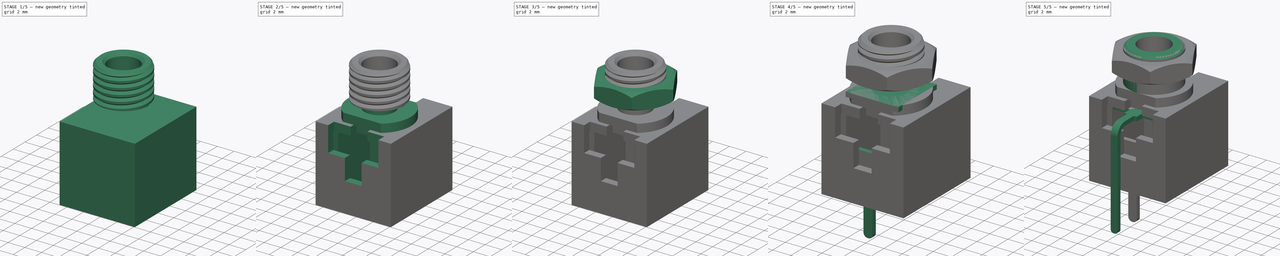
[diagram: build sequence overview — one tinted view per stage of 5, left to right]
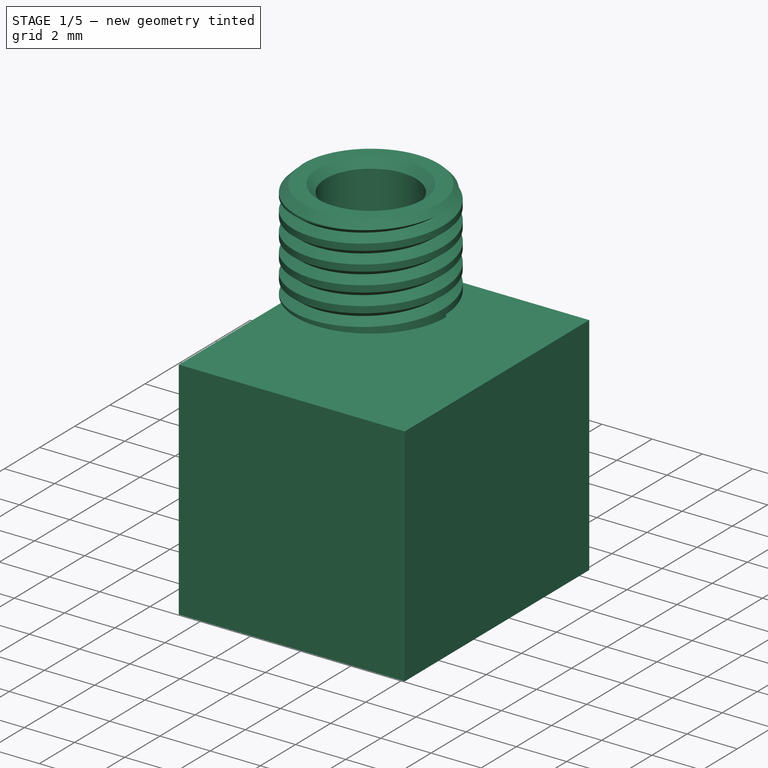
[diagram: stage 1 of 5 — iso view after this stage's code; geometry added in this stage tinted green]
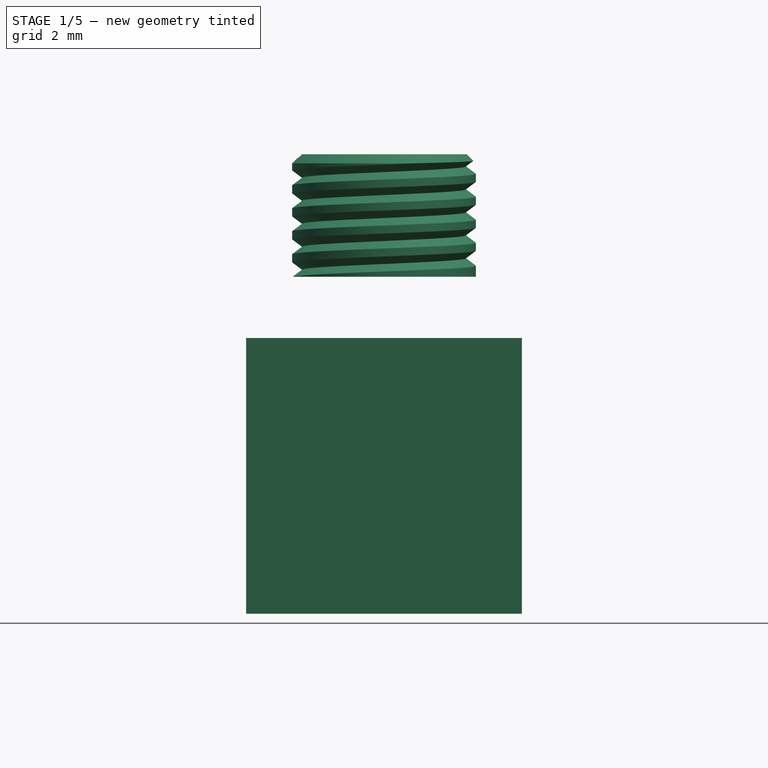
[diagram: stage 1 of 5 — front view after this stage's code; geometry added in this stage tinted green]
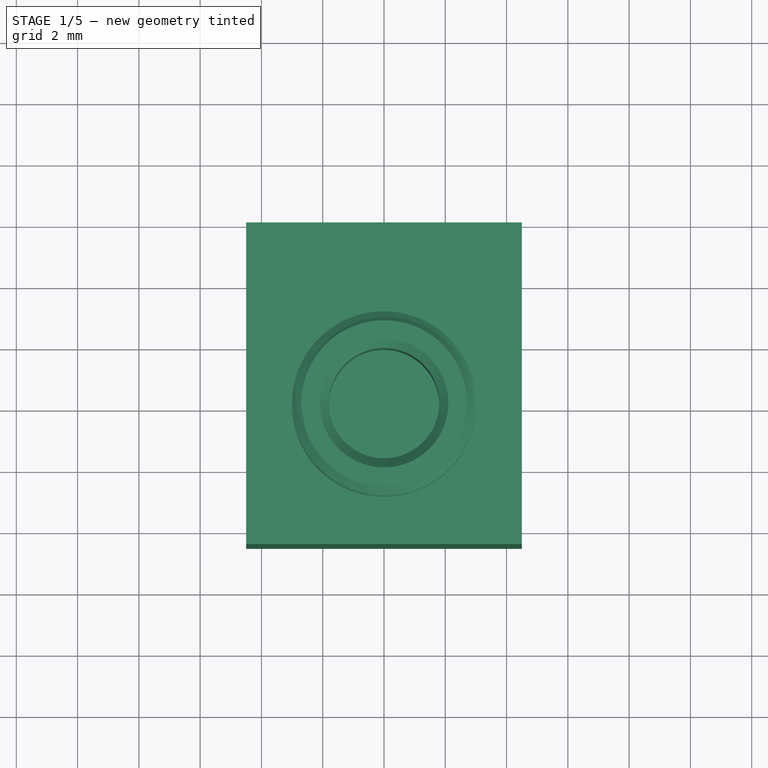
[diagram: stage 1 of 5 — top view after this stage's code; geometry added in this stage tinted green]
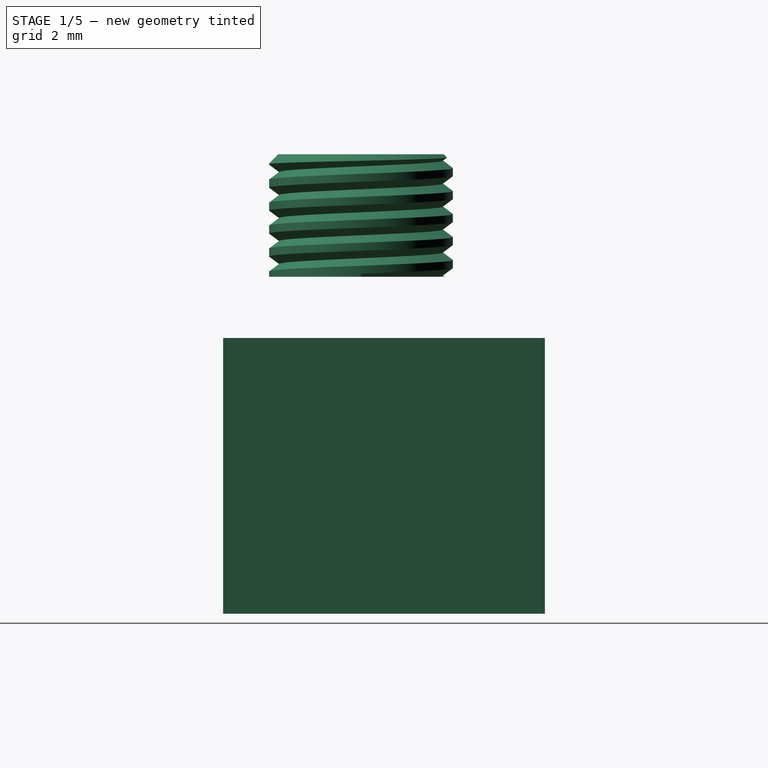
[diagram: stage 1 of 5 — right view after this stage's code; geometry added in this stage tinted green]
FCSTD DOCUMENT  (FreeCAD 0.20R29177 (Git))
Label: WQP-WQP518MA
License: All rights reserved
LicenseURL: http://en.wikipedia.org/wiki/All_rights_reserved
objects: Sketcher::SketchObject×19, PartDesign::Pad×9, PartDesign::Pocket×7, PartDesign::Body×5, PartDesign::Fillet×4, PartDesign::ShapeBinder×2, Part::Sphere×2, Part::MultiCommon×2, PartDesign::Chamfer×2, PartDesign::AdditivePipe×1, PartDesign::SubtractivePipe×1, Part::Compound×1, Part::Feature×1
note: 80 computed .brp shape members not serialized (recipe doc carries the construction recipe); baked Part::Feature solids carry a one-line shape summary decoded from their .brp

FEATURE [Sketcher::SketchObject] Sketch
  FullyConstrained = false
  MapMode = 5
  Support = -> [XY_Plane]
  sketch-geometry (4):
    g0: LineSegment StartX=-4.5 StartY=6 StartZ=0 EndX=4.5 EndY=6 EndZ=0
    g1: LineSegment StartX=4.5 StartY=6 StartZ=0 EndX=4.5 EndY=-4.5 EndZ=0
    g2: LineSegment StartX=4.5 StartY=-4.5 StartZ=0 EndX=-4.5 EndY=-4.5 EndZ=0
    g3: LineSegment StartX=-4.5 StartY=-4.5 StartZ=0 EndX=-4.5 EndY=6 EndZ=0
  constraints (11):
    c: Coincident(g0,g1)
    c: Coincident(g1,g2)
    c: Coincident(g2,g3)
    c: Coincident(g3,g0)
    c: Horizontal(g0)
    c: Vertical(g1)
    c: Vertical(g3)
    c: DistanceX(g0,g0) = 9
    c: DistanceY(g3,g3) = 10.5
    c: DistanceY(g2,g-1) = 4.5
    c: Symmetric(g2,g1,g-2)
FEATURE [PartDesign::Pad] Pad
  AllowMultiFace = false
  Direction = (1,1,1)
  Length = 9
  Length2 = 100
  Profile = -> Sketch
  Type = 0
FEATURE [Sketcher::SketchObject] Sketch016
  FullyConstrained = false
  MapMode = 5
  Placement = pos=(0,0,11) rot=(0,0,1;0rad)
  sketch-geometry (1):
    g0: Circle CenterX=0 CenterY=0 CenterZ=0 NormalX=0 NormalY=0 NormalZ=1 AngleXU=0 Radius=3
  constraints (2):
    c: Coincident(g-1,g0)
    c: Diameter(g0) = 6
FEATURE [Sketcher::SketchObject] Sketch019
  FullyConstrained = false
  MapMode = 5
  Placement = pos=(0,0,0) rot=(0.57735,0.57735,0.57735;2.0944rad)
  Support = -> [YZ_Plane002]
  sketch-geometry (3):
    g0: LineSegment StartX=-3.07288 StartY=16.2165 StartZ=0 EndX=-3.07288 EndY=15.6165 EndZ=0
    g1: LineSegment StartX=-3.07288 StartY=15.6165 StartZ=0 EndX=-2.67288 EndY=15.9165 EndZ=0
    g2: LineSegment StartX=-2.67288 StartY=15.9165 StartZ=0 EndX=-3.07288 EndY=16.2165 EndZ=0
  constraints (7):
    c: Coincident(g0,g1)
    c: Coincident(g1,g2)
    c: Coincident(g2,g0)
    c: Vertical(g0)
    c: DistanceY(g0,g0) = 0.6
    c: DistanceY(g0,g1) = 0.3
    c: DistanceX(g0,g1) = 0.4
FEATURE [PartDesign::Pad] Pad007
  AllowMultiFace = false
  Direction = (1,1,1)
  Length = 4
  Length2 = 100
  Placement = pos=(0,0,11) rot=(0,0,1;0rad)
  Profile = -> Sketch016
  Type = 0
FEATURE [Sketcher::SketchObject] Sketch023
  FullyConstrained = false
  MapMode = 5
  Placement = pos=(0,0,15) rot=(0,0,1;0rad)
  Support = -> [Pad007]
  sketch-geometry (1):
    g0: Circle CenterX=0 CenterY=0 CenterZ=0 NormalX=0 NormalY=0 NormalZ=1 AngleXU=0 Radius=1.8
  constraints (2):
    c: Coincident(g0,g-1)
    c: Diameter(g0) = 3.6
FEATURE [PartDesign::Pocket] Pocket007
  AllowMultiFace = false
  BaseFeature = -> Pad007
  Direction = (1,1,1)
  Length = 6
  Length2 = 100
  Placement = pos=(0,0,11) rot=(0,0,1;0rad)
  Profile = -> Sketch023
  Type = 0
FEATURE [PartDesign::Body] Body
  Group = -> [Sketch,Pad,Sketch001,Pocket,Sketch002,Pad001,Sketch004,Pocket002,Sketch007,Pocket011,Sketch032,Pocket012,Sketch033,Pocket013]
  Origin = -> Origin
  Tip = -> Pocket013
FEATURE [PartDesign::Chamfer] Chamfer001
  Angle = 45
  Base = -> Pocket007 [Edge3]
  BaseFeature = -> Pocket007
  ChamferType = 0
  FlipDirection = false
  Placement = pos=(0,0,11) rot=(0,0,1;0rad)
  Size = 0.3
  Size2 = 1
  SupportTransform = false
  UseAllEdges = false
FEATURE [PartDesign::SubtractivePipe] SubtractivePipe001
  AllowMultiFace = false
  AuxilleryCurvelinear = true
  AuxillerySpineTangent = false
  BaseFeature = -> Chamfer001
  Binormal = (0,0,0)
  Mode = 2
  Placement = pos=(0,0,11) rot=(0,0,1;0rad)
  Profile = -> Sketch019
  Spine = -> CopyHelix001 [Edge8,Edge7,Edge6,Edge5,Edge4,Edge3,Edge2,Edge1]
  SpineTangent = false
  Transformation = 0
  Transition = 0
FEATURE [PartDesign::Chamfer] Chamfer
  Angle = 45
  Base = -> SubtractivePipe001 [Edge21]
  BaseFeature = -> SubtractivePipe001
  ChamferType = 0
  FlipDirection = false
  Placement = pos=(0,0,11) rot=(0,0,1;0rad)
  Size = 0.3
  Size2 = 1
  SupportTransform = false
  UseAllEdges = false
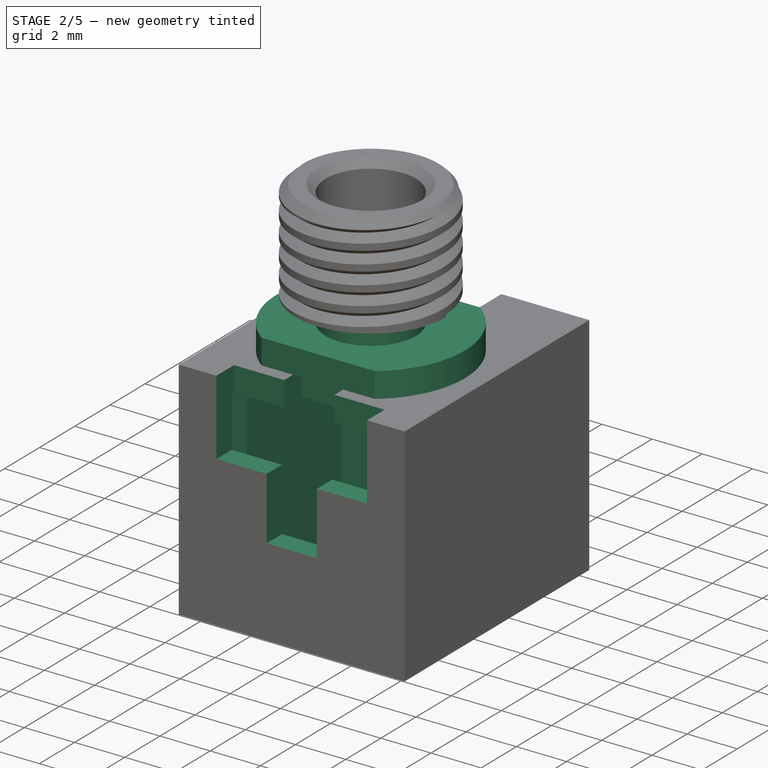
[diagram: stage 2 of 5 — iso view after this stage's code; geometry added in this stage tinted green]
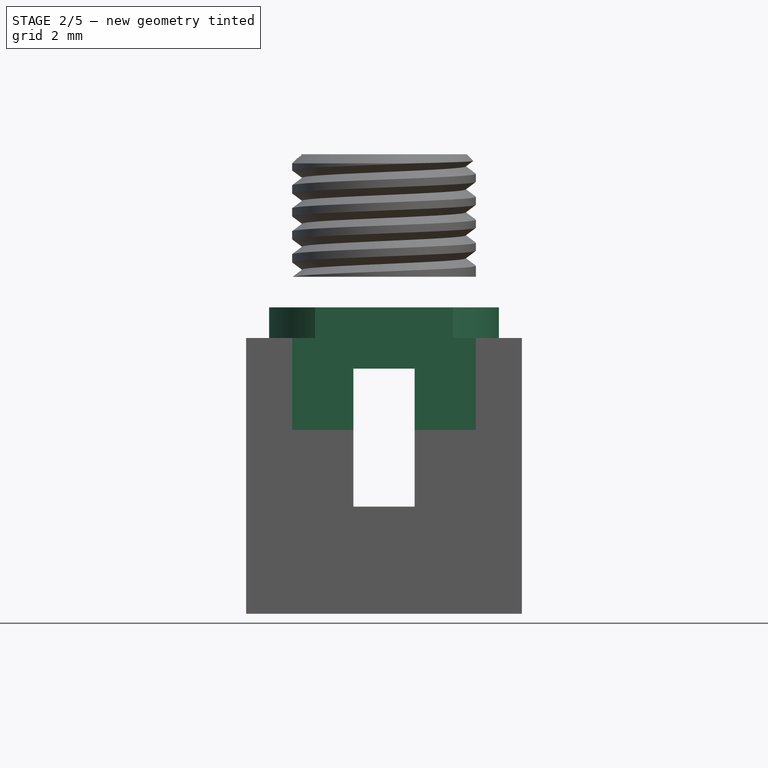
[diagram: stage 2 of 5 — front view after this stage's code; geometry added in this stage tinted green]
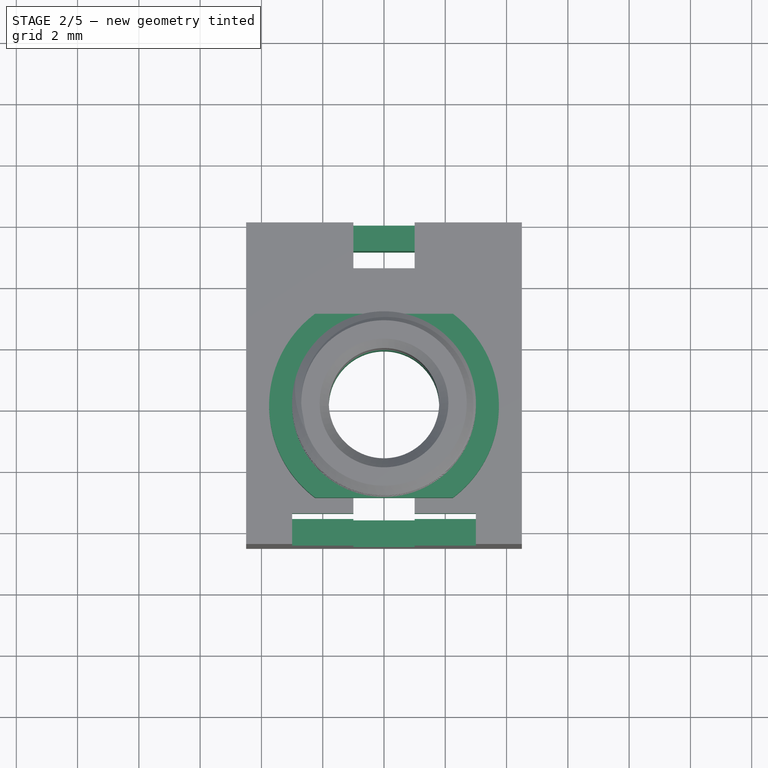
[diagram: stage 2 of 5 — top view after this stage's code; geometry added in this stage tinted green]
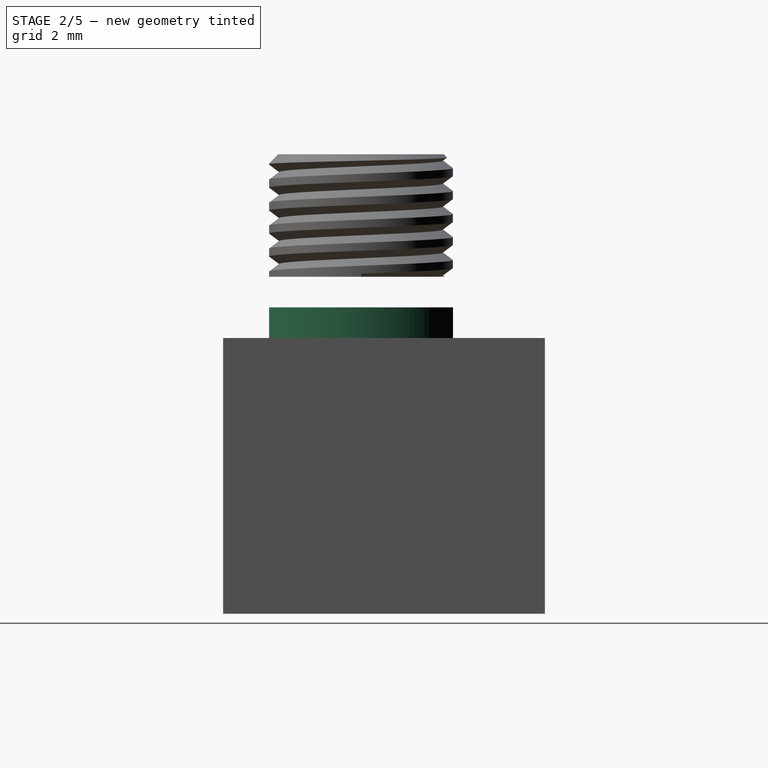
[diagram: stage 2 of 5 — right view after this stage's code; geometry added in this stage tinted green]
FEATURE [Sketcher::SketchObject] Sketch001
  ExternalGeometry = -> [Pad]
  FullyConstrained = false
  MapMode = 5
  Placement = pos=(0,0,0) rot=(1,0,0;3.14159rad)
  Support = -> [Pad]
  sketch-geometry (20):
    g0: LineSegment StartX=-3.75 StartY=3.63 StartZ=0 EndX=-3.75 EndY=3.13 EndZ=0
    g1: LineSegment StartX=-3.75 StartY=3.13 StartZ=0 EndX=-2.75 EndY=3.13 EndZ=0
    g2: LineSegment StartX=-2.75 StartY=3.13 StartZ=0 EndX=-2.75 EndY=1.13 EndZ=0
    g3: LineSegment StartX=-2.75 StartY=1.13 StartZ=0 EndX=-3.75 EndY=1.13 EndZ=0
    g4: LineSegment StartX=-3.75 StartY=1.13 StartZ=0 EndX=-3.75 EndY=-3.67 EndZ=0
    g5: LineSegment StartX=-3.75 StartY=-3.67 StartZ=0 EndX=-2.75 EndY=-3.67 EndZ=0
    g6: LineSegment StartX=-2.75 StartY=-3.67 StartZ=0 EndX=-2.75 EndY=-4.67 EndZ=0
    g7: LineSegment StartX=-2.75 StartY=-4.67 StartZ=0 EndX=-3.75 EndY=-4.67 EndZ=0
    g8: LineSegment StartX=-3.75 StartY=-4.67 StartZ=0 EndX=-3.75 EndY=-5.17 EndZ=0
    g9: LineSegment StartX=-3.75 StartY=-5.17 StartZ=0 EndX=3.75 EndY=-5.17 EndZ=0
    g10: LineSegment StartX=3.75 StartY=-5.17 StartZ=0 EndX=3.75 EndY=-4.67 EndZ=0
    g11: LineSegment StartX=3.75 StartY=-4.67 StartZ=0 EndX=2.75 EndY=-4.67 EndZ=0
    g12: LineSegment StartX=2.75 StartY=-4.67 StartZ=0 EndX=2.75 EndY=-3.67 EndZ=0
    g13: LineSegment StartX=2.75 StartY=-3.67 StartZ=0 EndX=3.75 EndY=-3.67 EndZ=0
    g14: LineSegment StartX=3.75 StartY=-3.67 StartZ=0 EndX=3.75 EndY=1.13 EndZ=0
    g15: LineSegment StartX=3.75 StartY=1.13 StartZ=0 EndX=2.75 EndY=1.13 EndZ=0
    g16: LineSegment StartX=2.75 StartY=1.13 StartZ=0 EndX=2.75 EndY=3.13 EndZ=0
    g17: LineSegment StartX=2.75 StartY=3.13 StartZ=0 EndX=3.75 EndY=3.13 EndZ=0
    g18: LineSegment StartX=3.75 StartY=3.13 StartZ=0 EndX=3.75 EndY=3.63 EndZ=0
    g19: LineSegment StartX=3.75 StartY=3.63 StartZ=0 EndX=-3.75 EndY=3.63 EndZ=0
  constraints (62):
    c: Coincident(g0,g1)
    c: Coincident(g1,g2)
    c: Coincident(g2,g3)
    c: Coincident(g3,g4)
    c: Coincident(g4,g5)
    c: Coincident(g5,g6)
    c: Coincident(g6,g7)
    c: Coincident(g7,g8)
    c: Coincident(g8,g9)
    c: Coincident(g9,g10)
    c: Coincident(g10,g11)
    c: Coincident(g11,g12)
    c: Coincident(g12,g13)
    c: Coincident(g13,g14)
    c: Coincident(g14,g15)
    c: Coincident(g15,g16)
    c: Coincident(g16,g17)
    c: Coincident(g17,g18)
    c: Coincident(g18,g19)
    c: Coincident(g19,g0)
    c: Vertical(g18)
    c: Vertical(g0)
    c: Vertical(g2)
    c: Vertical(g16)
    c: Vertical(g4)
    c: Vertical(g14)
    c: Vertical(g6)
    c: Vertical(g12)
    c: Vertical(g8)
    c: Vertical(g10)
    c: Horizontal(g11)
    c: Horizontal(g7)
    c: Horizontal(g5)
    c: Horizontal(g13)
    c: Horizontal(g15)
    c: Horizontal(g1)
    c: Horizontal(g17)
    c: Equal(g1,g17)
    c: Equal(g15,g3)
    c: Horizontal(g3)
    c: Equal(g5,g13)
    c: Equal(g13,g15)
    c: Equal(g3,g5)
    c: Equal(g7,g11)
    c: Equal(g9,g19)
    c: DistanceX(g13,g13) = 1
    c: Equal(g13,g11)
    c: Equal(g5,g13)
    c: Equal(g7,g13)
    c: DistanceY(g8,g8) = 0.5
    c: DistanceY(g18,g18) = 0.5
    c: DistanceY(g12,g12) = 1
    c: Equal(g6,g12)
    c: Equal(g2,g16)
    c: DistanceY(g-4,g9) = 0.83
    c: DistanceY(g18,g-3) = 0.87
    c: Equal(g10,g8)
    c: Equal(g4,g14)
    c: Equal(g0,g18)
    c: Symmetric(g8,g9,g-2)
    c: DistanceY(g16,g16) = 2
    c: DistanceX(g19,g19) = 7.5
FEATURE [PartDesign::Pocket] Pocket
  AllowMultiFace = false
  BaseFeature = -> Pad
  Direction = (1,1,1)
  Length = 8
  Length2 = 100
  Profile = -> Sketch001
  Type = 0
FEATURE [Sketcher::SketchObject] Sketch002
  ExternalGeometry = -> [Pocket]
  FullyConstrained = false
  MapMode = 5
  Placement = pos=(0,0,9) rot=(0,0,1;0rad)
  Support = -> [Pocket]
  sketch-geometry (4):
    g0: LineSegment StartX=-2.25 StartY=3 StartZ=0 EndX=2.25 EndY=3 EndZ=0
    g1: LineSegment StartX=2.25 StartY=-3 StartZ=0 EndX=-2.25 EndY=-3 EndZ=0
    g2: ArcOfCircle CenterX=0 CenterY=0 CenterZ=0 NormalX=0 NormalY=0 NormalZ=1 AngleXU=0 Radius=3.75 StartAngle=2.2143 EndAngle=4.06889
    g3: ArcOfCircle CenterX=0 CenterY=0 CenterZ=0 NormalX=0 NormalY=0 NormalZ=1 AngleXU=0 Radius=3.75 StartAngle=5.35589 EndAngle=7.21048
  constraints (11):
    c: Coincident(g2,g3)
    c: Coincident(g2,g-1)
    c: Coincident(g2,g0)
    c: Coincident(g0,g3)
    c: Coincident(g3,g1)
    c: Coincident(g1,g2)
    c: Horizontal(g0)
    c: Equal(g1,g0)
    c: Symmetric(g1,g1,g-2)
    c: DistanceY(g1,g0) = 6
    c: DistanceX(g0,g0) = 4.5
FEATURE [PartDesign::Pad] Pad001
  AllowMultiFace = false
  BaseFeature = -> Pocket
  Direction = (1,1,1)
  Length = 1
  Length2 = 100
  Profile = -> Sketch002
  Type = 0
FEATURE [Sketcher::SketchObject] Sketch004
  FullyConstrained = false
  MapMode = 5
  Placement = pos=(0,6,0) rot=(0,0.707107,0.707107;3.14159rad)
  sketch-geometry (4):
    g0: LineSegment StartX=-1 StartY=9 StartZ=0 EndX=1 EndY=9 EndZ=0
    g1: LineSegment StartX=1 StartY=9 StartZ=0 EndX=1 EndY=3 EndZ=0
    g2: LineSegment StartX=1 StartY=3 StartZ=0 EndX=-1 EndY=3 EndZ=0
    g3: LineSegment StartX=-1 StartY=3 StartZ=0 EndX=-1 EndY=9 EndZ=0
  constraints (10):
    c: Coincident(g0,g1)
    c: Coincident(g1,g2)
    c: Coincident(g2,g3)
    c: Coincident(g3,g0)
    c: Horizontal(g2)
    c: Vertical(g1)
    c: Vertical(g3)
    c: Symmetric(g0,g0,g-2)
    c: DistanceX(g2,g2) = 2
    c: DistanceY(g1,g1) = 6
FEATURE [PartDesign::Pocket] Pocket002
  AllowMultiFace = false
  BaseFeature = -> Pad001
  Direction = (1,1,1)
  Length = 1.5
  Length2 = 100
  Profile = -> Sketch004
  Type = 0
FEATURE [PartDesign::Pocket] Pocket011
  AllowMultiFace = false
  BaseFeature = -> Pocket002
  Direction = (1,1,1)
  Length = 5
  Length2 = 100
  Profile = -> Sketch007
  Reversed = true
  Type = 1
FEATURE [Sketcher::SketchObject] Sketch032
  ExternalGeometry = -> [Pocket011]
  FullyConstrained = false
  MapMode = 5
  Placement = pos=(0,-4.5,0) rot=(1,0,0;1.5708rad)
  Support = -> [Pocket011]
  sketch-geometry (8):
    g0: LineSegment StartX=-3 StartY=9 StartZ=0 EndX=-3 EndY=6 EndZ=0
    g1: LineSegment StartX=-3 StartY=6 StartZ=0 EndX=-1 EndY=6 EndZ=0
    g2: LineSegment StartX=-1 StartY=6 StartZ=0 EndX=-1 EndY=3.5 EndZ=0
    g3: LineSegment StartX=-1 StartY=3.5 StartZ=0 EndX=1 EndY=3.5 EndZ=0
    g4: LineSegment StartX=1 StartY=3.5 StartZ=0 EndX=1 EndY=6 EndZ=0
    g5: LineSegment StartX=1 StartY=6 StartZ=0 EndX=3 EndY=6 EndZ=0
    g6: LineSegment StartX=3 StartY=6 StartZ=0 EndX=3 EndY=9 EndZ=0
    g7: LineSegment StartX=3 StartY=9 StartZ=0 EndX=-3 EndY=9 EndZ=0
  constraints (22):
    c: Coincident(g0,g1)
    c: Coincident(g1,g2)
    c: Coincident(g2,g3)
    c: Coincident(g3,g4)
    c: Coincident(g4,g5)
    c: Coincident(g5,g6)
    c: Coincident(g6,g7)
    c: Coincident(g7,g0)
    c: Horizontal(g5)
    c: Vertical(g4)
    c: Vertical(g6)
    c: Vertical(g2)
    c: Vertical(g0)
    c: PointOnObject(g6,g-3)
    c: Symmetric(g0,g6,g-2)
    c: Symmetric(g2,g3,g-2)
    c: DistanceX(g7,g7) = 6
    c: DistanceX(g3,g3) = 2
    c: DistanceY(g6,g6) = 3
    c: Equal(g6,g0)
    c: Equal(g4,g2)
    c: DistanceY(g4,g4) = 2.5
FEATURE [PartDesign::Pocket] Pocket012
  AllowMultiFace = false
  BaseFeature = -> Pocket011
  Direction = (1,1,1)
  Length = 1
  Length2 = 100
  Profile = -> Sketch032
  Type = 0
FEATURE [Sketcher::SketchObject] Sketch033
  ExternalGeometry = -> [Pocket012]
  FullyConstrained = false
  MapMode = 5
  Placement = pos=(0,-3.5,5e-16) rot=(1,0,0;1.5708rad)
  Support = -> [Pocket012]
  sketch-geometry (4):
    g0: LineSegment StartX=-1 StartY=9 StartZ=0 EndX=1 EndY=9 EndZ=0
    g1: LineSegment StartX=1 StartY=9 StartZ=0 EndX=1 EndY=8 EndZ=0
    g2: LineSegment StartX=1 StartY=8 StartZ=0 EndX=-1 EndY=8 EndZ=0
    g3: LineSegment StartX=-1 StartY=8 StartZ=0 EndX=-1 EndY=9 EndZ=0
  constraints (11):
    c: Coincident(g0,g1)
    c: Coincident(g1,g2)
    c: Coincident(g2,g3)
    c: Coincident(g3,g0)
    c: Horizontal(g2)
    c: Vertical(g1)
    c: Vertical(g3)
    c: PointOnObject(g0,g-3)
    c: PointOnObject(g2,g-4)
    c: Symmetric(g0,g0,g-2)
    c: DistanceX(g0,g0) = 2
FEATURE [PartDesign::Pocket] Pocket013
  AllowMultiFace = false
  BaseFeature = -> Pocket012
  Direction = (1,1,1)
  Length = 1
  Length2 = 100
  Profile = -> Sketch033
  Type = 0
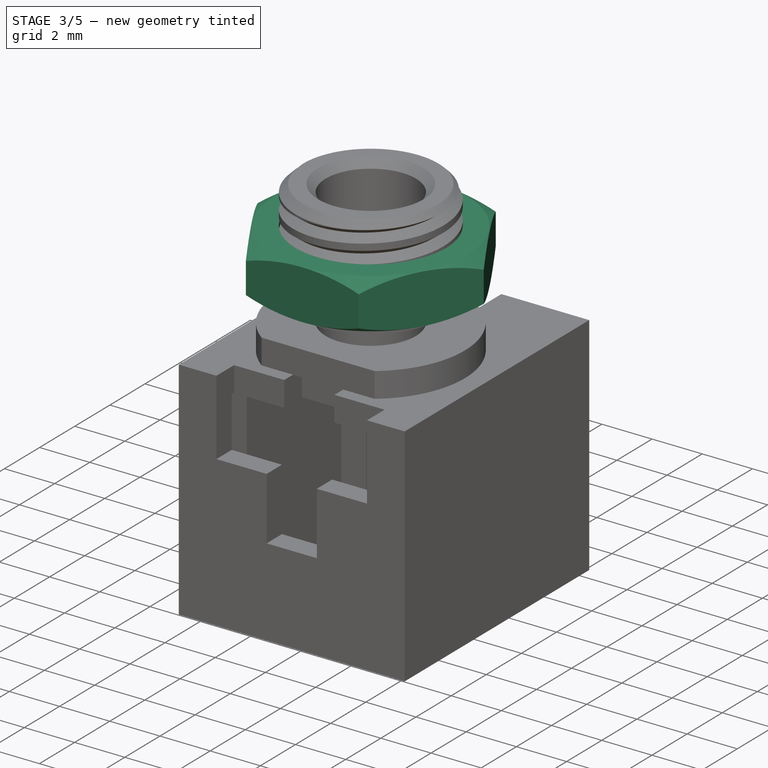
[diagram: stage 3 of 5 — iso view after this stage's code; geometry added in this stage tinted green]
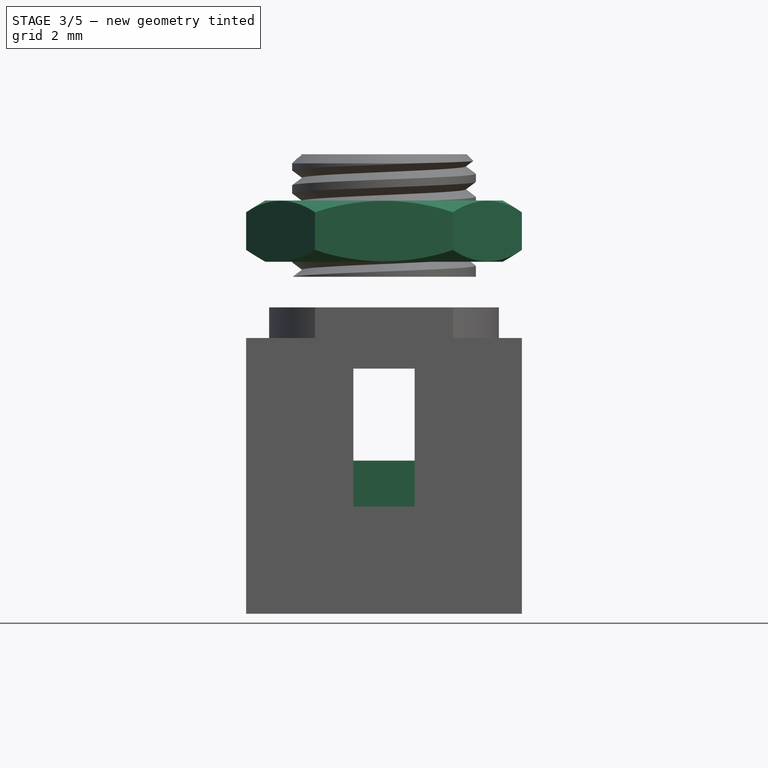
[diagram: stage 3 of 5 — front view after this stage's code; geometry added in this stage tinted green]
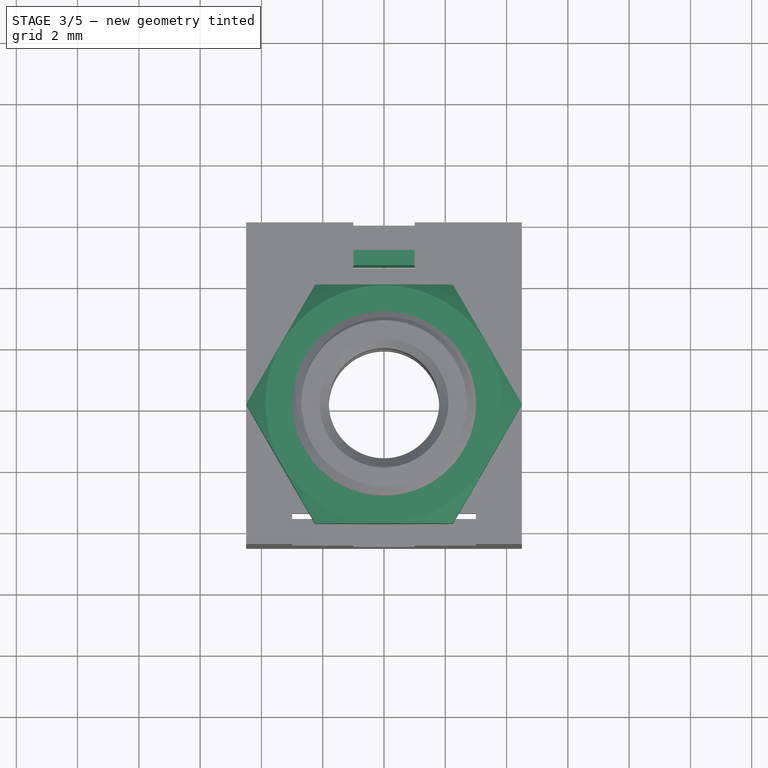
[diagram: stage 3 of 5 — top view after this stage's code; geometry added in this stage tinted green]
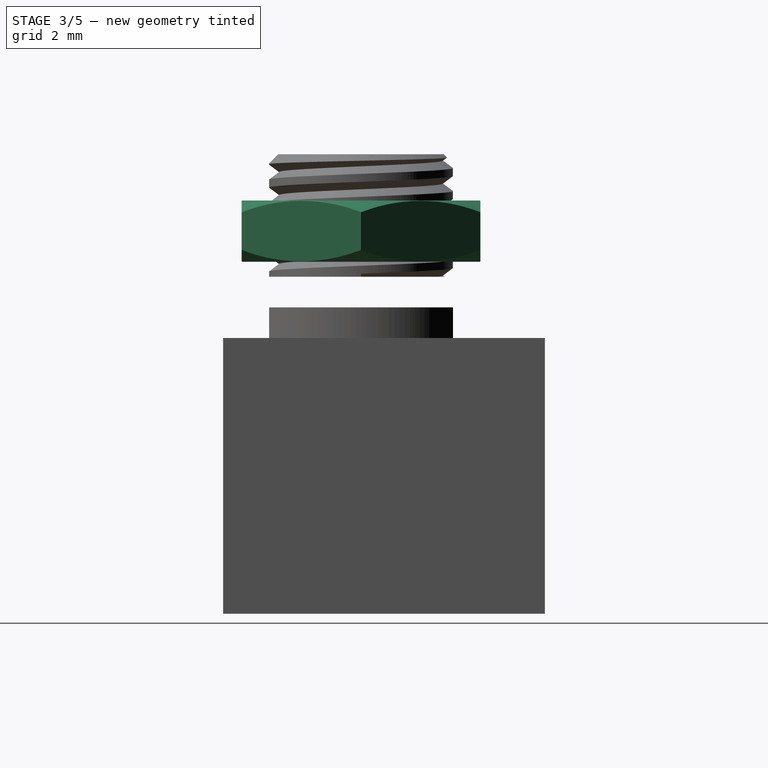
[diagram: stage 3 of 5 — right view after this stage's code; geometry added in this stage tinted green]
FEATURE [PartDesign::Body] Body003  label="R"
  Group = -> [Sketch025,Pad009,Sketch026,Pad010,Fillet005]
  Origin = -> Origin003
  Tip = -> Fillet005
FEATURE [Sketcher::SketchObject] Sketch027
  FullyConstrained = false
  MapMode = 5
  Support = -> [XY_Plane004]
  sketch-geometry (4):
    g0: LineSegment StartX=-3.75 StartY=4.67 StartZ=0 EndX=3.75 EndY=4.67 EndZ=0
    g1: LineSegment StartX=3.75 StartY=4.67 StartZ=0 EndX=3.75 EndY=5.17 EndZ=0
    g2: LineSegment StartX=3.75 StartY=5.17 StartZ=0 EndX=-3.75 EndY=5.17 EndZ=0
    g3: LineSegment StartX=-3.75 StartY=5.17 StartZ=0 EndX=-3.75 EndY=4.67 EndZ=0
  constraints (11):
    c: Coincident(g0,g1)
    c: Coincident(g1,g2)
    c: Coincident(g2,g3)
    c: Coincident(g3,g0)
    c: Horizontal(g0)
    c: Vertical(g1)
    c: Vertical(g3)
    c: Symmetric(g1,g2,g-2)
    c: DistanceY(g3,g3) = 0.5
    c: DistanceX(g0,g0) = 7.5
    c: DistanceY(g-1,g0) = 4.67
FEATURE [PartDesign::Pad] Pad011
  AllowMultiFace = false
  Direction = (1,1,1)
  Length = 5
  Length2 = 100
  Profile = -> Sketch027
  Type = 0
FEATURE [PartDesign::Body] Body004  label="T"
  Group = -> [Sketch027,Pad011,Sketch028,Pad012,Fillet006]
  Origin = -> Origin004
  Tip = -> Fillet006
FEATURE [Part::Sphere] Sphere
  Angle1 = -90
  Angle2 = 90
  Angle3 = 360
  AttacherType = Attacher::AttachEngine3D
  Placement = pos=(0,0,7) rot=(0,0,1;0rad)
  Radius = 8
FEATURE [Part::MultiCommon] Common
  Shapes = -> [Sphere]
FEATURE [Part::Sphere] Sphere001
  Angle1 = -90
  Angle2 = 90
  Angle3 = 360
  AttacherType = Attacher::AttachEngine3D
  Placement = pos=(0,0,-5) rot=(0,0,1;0rad)
  Radius = 8
FEATURE [Part::MultiCommon] Common001  label="Hex_nut"
  Placement = pos=(0,0,11.49) rot=(0,0,1;0rad)
  Shapes = -> [Sphere001,Common]
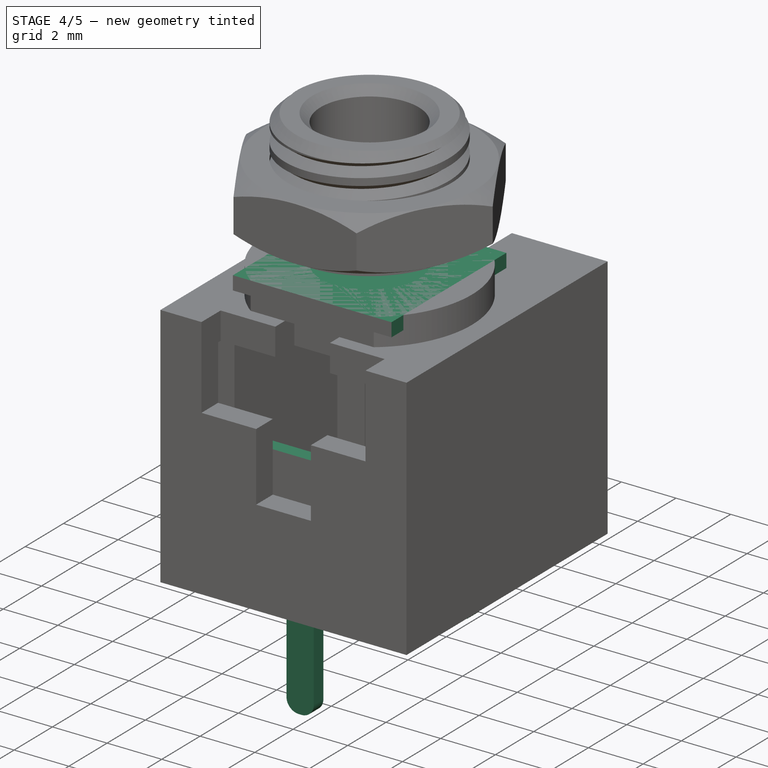
[diagram: stage 4 of 5 — iso view after this stage's code; geometry added in this stage tinted green]
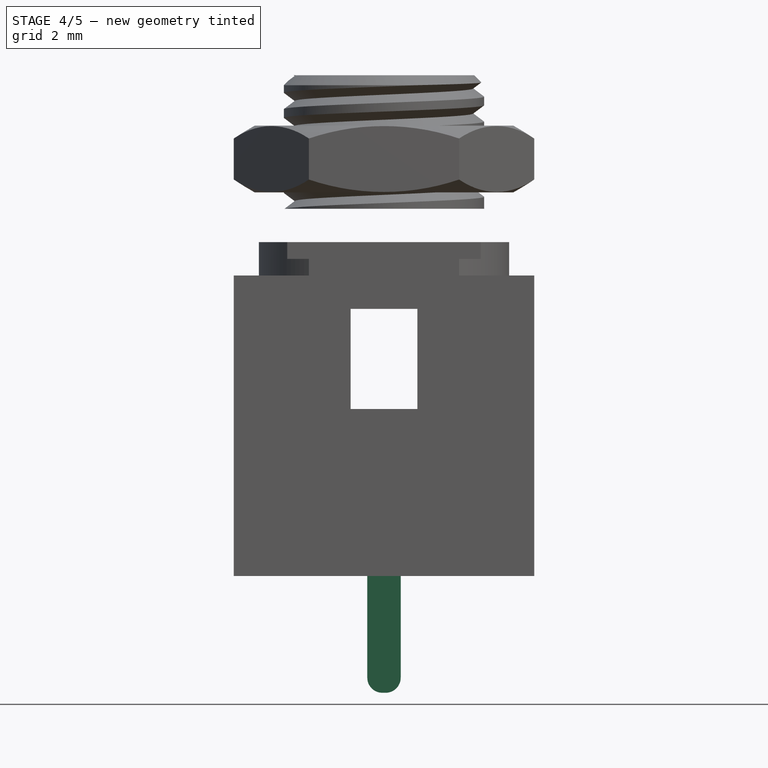
[diagram: stage 4 of 5 — front view after this stage's code; geometry added in this stage tinted green]
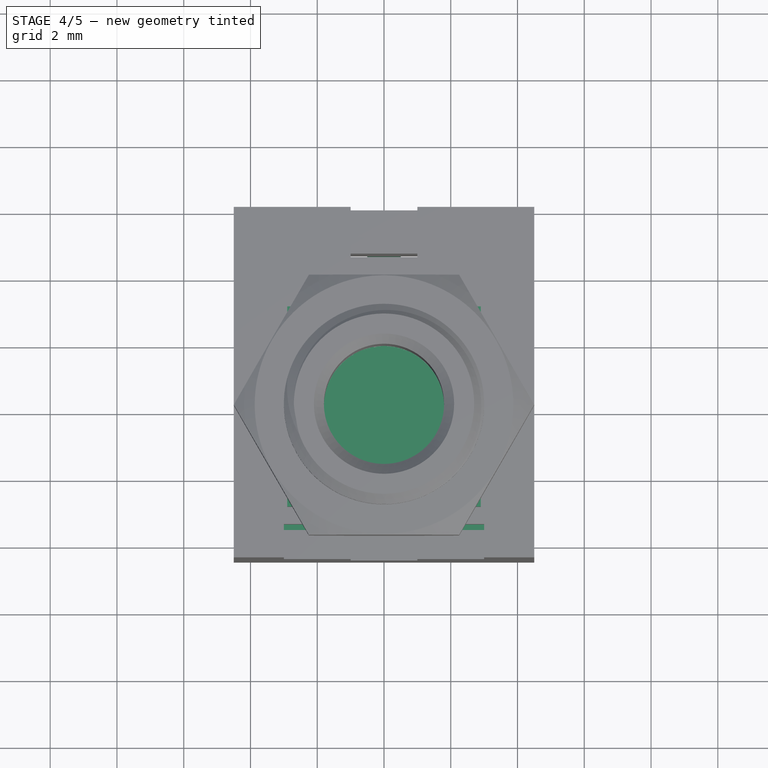
[diagram: stage 4 of 5 — top view after this stage's code; geometry added in this stage tinted green]
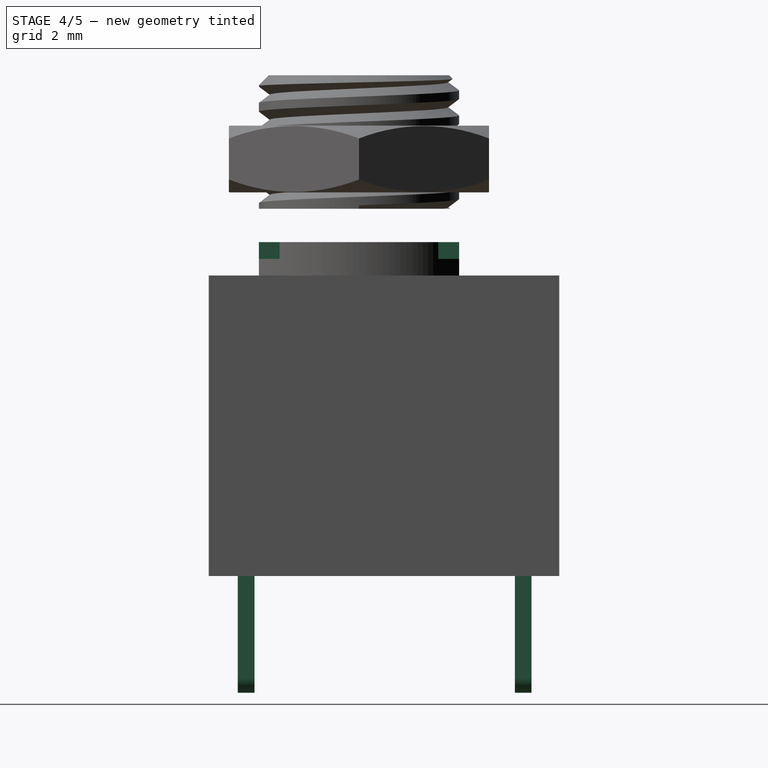
[diagram: stage 4 of 5 — right view after this stage's code; geometry added in this stage tinted green]
FEATURE [Sketcher::SketchObject] Sketch007
  FullyConstrained = false
  MapMode = 5
  Placement = pos=(0,2e-15,10) rot=(1,0,0;3.14159rad)
  sketch-geometry (1):
    g0: Circle CenterX=0 CenterY=0 CenterZ=0 NormalX=0 NormalY=0 NormalZ=1 AngleXU=0 Radius=1.8
  constraints (2):
    c: Coincident(g0,g-1)
    c: Diameter(g0) = 3.6
FEATURE [PartDesign::ShapeBinder] CopyPocket005
  TraceSupport = false
FEATURE [Sketcher::SketchObject] Sketch008
  FullyConstrained = false
  MapMode = 5
  Placement = pos=(0,0,9.5) rot=(0,0,1;0rad)
  Support = -> [CopyPocket005]
  sketch-geometry (4):
    g0: LineSegment StartX=-2.9 StartY=3 StartZ=0 EndX=2.9 EndY=3 EndZ=0
    g1: LineSegment StartX=2.9 StartY=3 StartZ=0 EndX=2.9 EndY=-3 EndZ=0
    g2: LineSegment StartX=2.9 StartY=-3 StartZ=0 EndX=-2.9 EndY=-3 EndZ=0
    g3: LineSegment StartX=-2.9 StartY=-3 StartZ=0 EndX=-2.9 EndY=3 EndZ=0
  constraints (10):
    c: Coincident(g0,g1)
    c: Coincident(g1,g2)
    c: Coincident(g2,g3)
    c: Coincident(g3,g0)
    c: Horizontal(g0)
    c: Vertical(g3)
    c: Symmetric(g2,g1,g-2)
    c: Symmetric(g0,g1,g-1)
    c: DistanceY(g1,g1) = 6
    c: DistanceX(g0,g0) = 5.8
FEATURE [PartDesign::Pad] Pad002
  AllowMultiFace = false
  Direction = (1,1,1)
  Length = 0.5
  Length2 = 100
  Profile = -> Sketch008
  Type = 0
FEATURE [PartDesign::Body] Body001  label="S"
  Group = -> [CopyPocket005,Sketch008,Pad002,Fillet001,Sketch009,Pad003,Sketch010,Sketch011,AdditivePipe,Fillet002,Sketch024,Pocket008]
  Origin = -> Origin001
  Placement = pos=(0,0,-2) rot=(0,0,1;0rad)
  Tip = -> Pocket008
FEATURE [Sketcher::SketchObject] Sketch025
  FullyConstrained = false
  MapMode = 5
  Support = -> [XY_Plane003]
  sketch-geometry (4):
    g0: LineSegment StartX=-3.75 StartY=-3.63 StartZ=0 EndX=3.75 EndY=-3.63 EndZ=0
    g1: LineSegment StartX=3.75 StartY=-3.63 StartZ=0 EndX=3.75 EndY=-3.13 EndZ=0
    g2: LineSegment StartX=3.75 StartY=-3.13 StartZ=0 EndX=-3.75 EndY=-3.13 EndZ=0
    g3: LineSegment StartX=-3.75 StartY=-3.13 StartZ=0 EndX=-3.75 EndY=-3.63 EndZ=0
  constraints (11):
    c: Coincident(g0,g1)
    c: Coincident(g1,g2)
    c: Coincident(g2,g3)
    c: Coincident(g3,g0)
    c: Horizontal(g0)
    c: Vertical(g1)
    c: Vertical(g3)
    c: Symmetric(g1,g2,g-2)
    c: DistanceY(g3,g3) = 0.5
    c: DistanceX(g0,g0) = 7.5
    c: DistanceY(g1,g-1) = 3.13
FEATURE [PartDesign::Pad] Pad009
  AllowMultiFace = false
  Direction = (1,1,1)
  Length = 5
  Length2 = 100
  Profile = -> Sketch025
  Type = 0
FEATURE [Sketcher::SketchObject] Sketch026
  ExternalGeometry = -> [Pad009]
  FullyConstrained = false
  MapMode = 5
  Placement = pos=(0,0,0) rot=(1,0,0;3.14159rad)
  Support = -> [Pad009]
  sketch-geometry (4):
    g0: LineSegment StartX=-0.5 StartY=3.63 StartZ=0 EndX=0.5 EndY=3.63 EndZ=0
    g1: LineSegment StartX=0.5 StartY=3.63 StartZ=0 EndX=0.5 EndY=3.13 EndZ=0
    g2: LineSegment StartX=0.5 StartY=3.13 StartZ=0 EndX=-0.5 EndY=3.13 EndZ=0
    g3: LineSegment StartX=-0.5 StartY=3.13 StartZ=0 EndX=-0.5 EndY=3.63 EndZ=0
  constraints (11):
    c: Coincident(g0,g1)
    c: Coincident(g1,g2)
    c: Coincident(g2,g3)
    c: Coincident(g3,g0)
    c: Horizontal(g2)
    c: Vertical(g1)
    c: Vertical(g3)
    c: PointOnObject(g0,g-3)
    c: PointOnObject(g1,g-4)
    c: Symmetric(g0,g0,g-2)
    c: DistanceX(g0,g0) = 1
FEATURE [PartDesign::Pad] Pad010
  AllowMultiFace = false
  BaseFeature = -> Pad009
  Direction = (1,1,1)
  Length = 3.5
  Length2 = 100
  Profile = -> Sketch026
  Type = 0
FEATURE [PartDesign::Fillet] Fillet005
  Base = -> Pad010 [Edge25,Edge23]
  BaseFeature = -> Pad010
  Radius = 0.45
  SupportTransform = false
  UseAllEdges = false
FEATURE [Sketcher::SketchObject] Sketch028
  ExternalGeometry = -> [Pad011]
  FullyConstrained = false
  MapMode = 5
  Placement = pos=(0,0,0) rot=(1,0,0;3.14159rad)
  Support = -> [Pad011]
  sketch-geometry (4):
    g0: LineSegment StartX=-0.5 StartY=-4.67 StartZ=0 EndX=0.5 EndY=-4.67 EndZ=0
    g1: LineSegment StartX=0.5 StartY=-4.67 StartZ=0 EndX=0.5 EndY=-5.17 EndZ=0
    g2: LineSegment StartX=0.5 StartY=-5.17 StartZ=0 EndX=-0.5 EndY=-5.17 EndZ=0
    g3: LineSegment StartX=-0.5 StartY=-5.17 StartZ=0 EndX=-0.5 EndY=-4.67 EndZ=0
  constraints (11):
    c: Coincident(g0,g1)
    c: Coincident(g1,g2)
    c: Coincident(g2,g3)
    c: Coincident(g3,g0)
    c: Horizontal(g2)
    c: Vertical(g1)
    c: Vertical(g3)
    c: PointOnObject(g0,g-3)
    c: PointOnObject(g1,g-4)
    c: Symmetric(g0,g0,g-2)
    c: DistanceX(g0,g0) = 1
FEATURE [PartDesign::Pad] Pad012
  AllowMultiFace = false
  BaseFeature = -> Pad011
  Direction = (1,1,1)
  Length = 3.5
  Length2 = 100
  Profile = -> Sketch028
  Type = 0
FEATURE [PartDesign::Fillet] Fillet006
  Base = -> Pad012 [Edge25,Edge23]
  BaseFeature = -> Pad012
  Radius = 0.45
  SupportTransform = false
  UseAllEdges = false
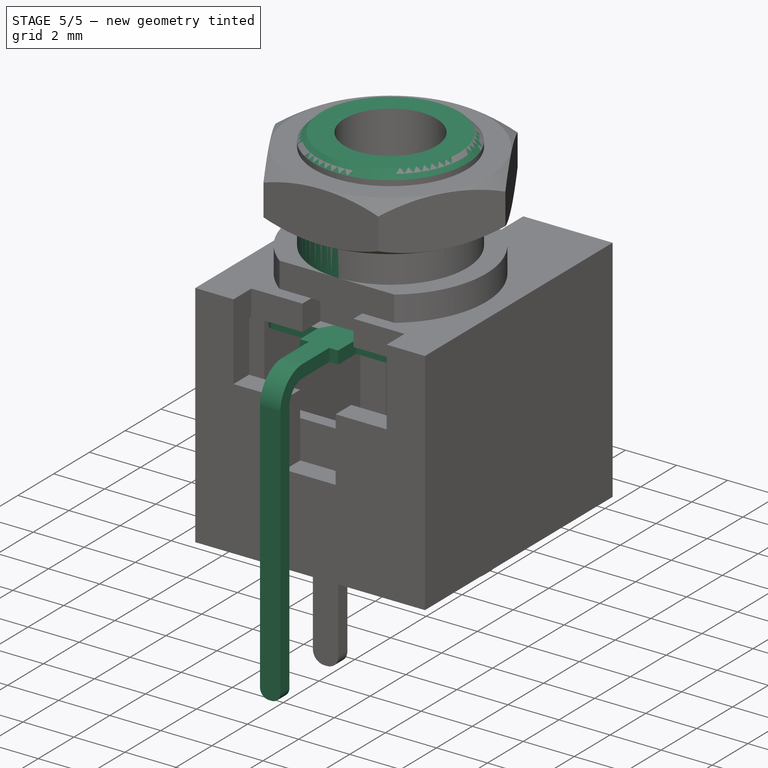
[diagram: stage 5 of 5 — iso view after this stage's code; geometry added in this stage tinted green]
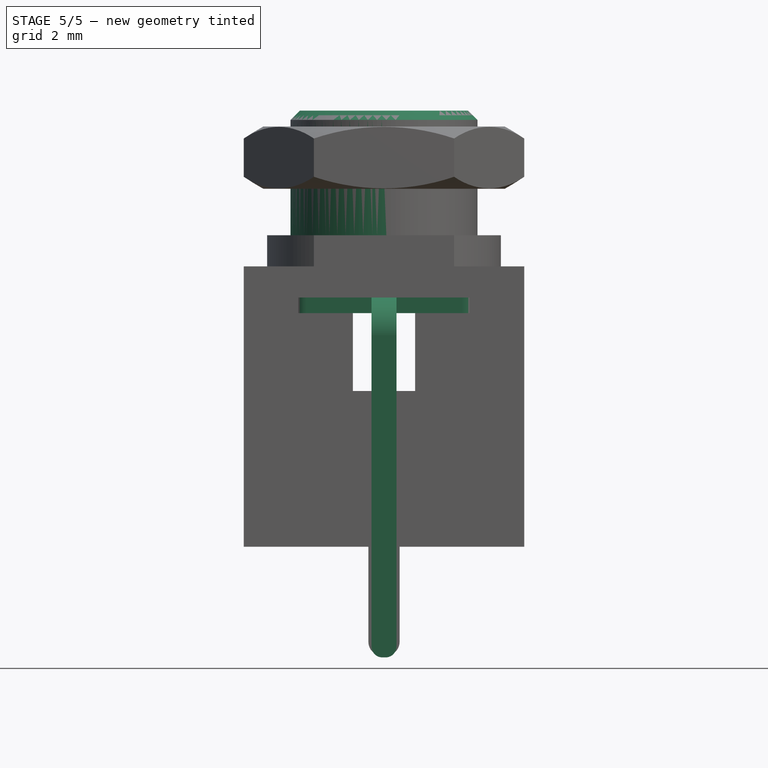
[diagram: stage 5 of 5 — front view after this stage's code; geometry added in this stage tinted green]
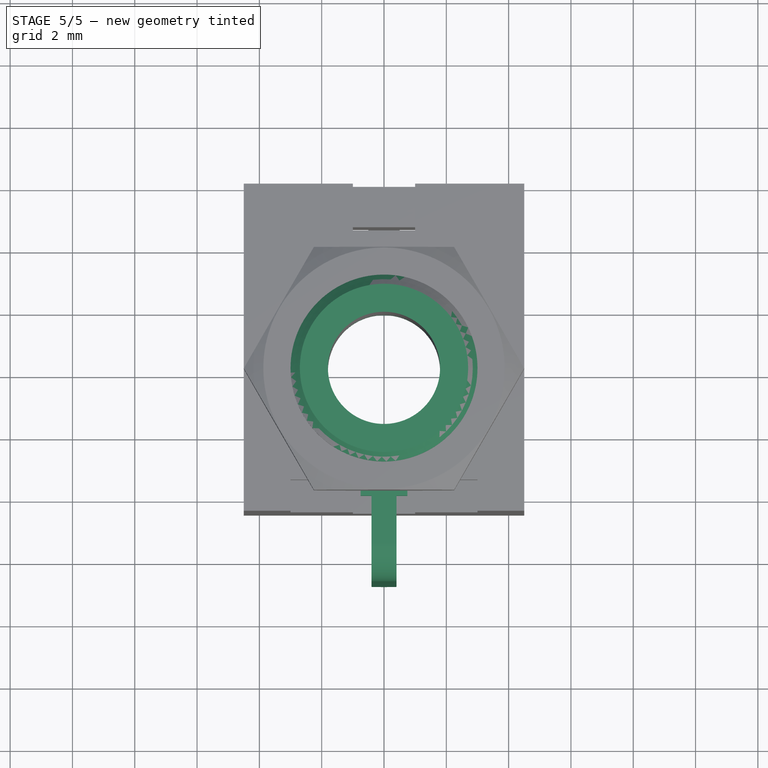
[diagram: stage 5 of 5 — top view after this stage's code; geometry added in this stage tinted green]
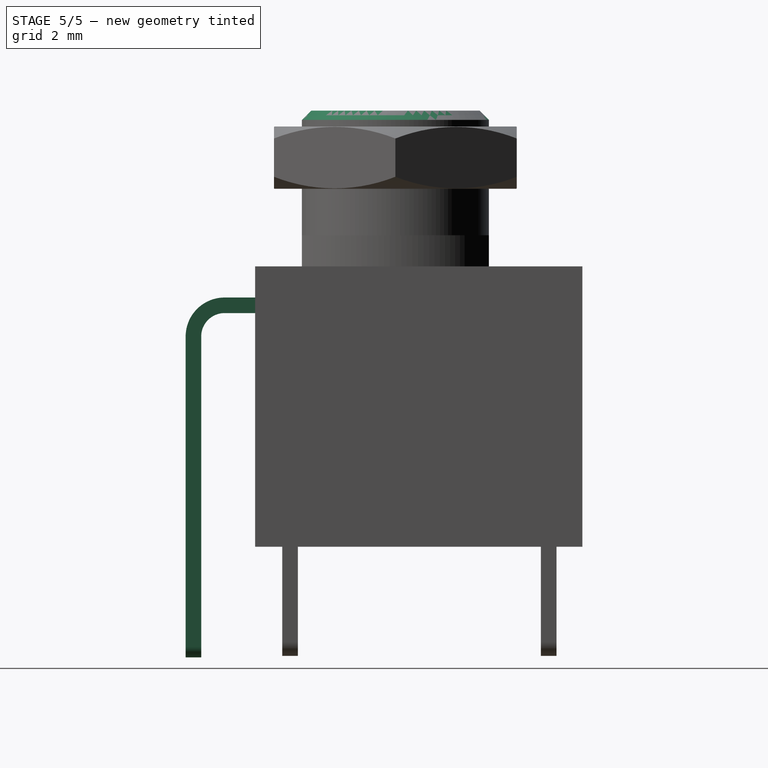
[diagram: stage 5 of 5 — right view after this stage's code; geometry added in this stage tinted green]
FEATURE [PartDesign::Fillet] Fillet001
  Base = -> Pad002 [Edge5,Edge8,Edge1,Edge2]
  BaseFeature = -> Pad002
  Radius = 0.4
  SupportTransform = false
  UseAllEdges = false
FEATURE [Sketcher::SketchObject] Sketch009
  ExternalGeometry = -> [Fillet001]
  FullyConstrained = false
  MapMode = 5
  Placement = pos=(0,-3,0) rot=(1,0,0;1.5708rad)
  Support = -> [Fillet001]
  sketch-geometry (4):
    g0: LineSegment StartX=-0.75 StartY=10 StartZ=0 EndX=0.75 EndY=10 EndZ=0
    g1: LineSegment StartX=0.75 StartY=10 StartZ=0 EndX=0.75 EndY=9.5 EndZ=0
    g2: LineSegment StartX=0.75 StartY=9.5 StartZ=0 EndX=-0.75 EndY=9.5 EndZ=0
    g3: LineSegment StartX=-0.75 StartY=9.5 StartZ=0 EndX=-0.75 EndY=10 EndZ=0
  constraints (11):
    c: Coincident(g0,g1)
    c: Coincident(g1,g2)
    c: Coincident(g2,g3)
    c: Coincident(g3,g0)
    c: Horizontal(g0)
    c: Vertical(g1)
    c: Vertical(g3)
    c: PointOnObject(g1,g-4)
    c: PointOnObject(g0,g-3)
    c: Symmetric(g2,g1,g-2)
    c: DistanceX(g2,g2) = 1.5
FEATURE [PartDesign::Pad] Pad003
  AllowMultiFace = false
  BaseFeature = -> Fillet001
  Direction = (1,1,1)
  Length = 1
  Length2 = 100
  Profile = -> Sketch009
  Type = 0
FEATURE [Sketcher::SketchObject] Sketch010
  ExternalGeometry = -> [Pad003]
  FullyConstrained = false
  MapMode = 5
  Placement = pos=(0,-4,0) rot=(1,0,0;1.5708rad)
  Support = -> [Pad003]
  sketch-geometry (4):
    g0: LineSegment StartX=-0.4 StartY=10 StartZ=0 EndX=0.4 EndY=10 EndZ=0
    g1: LineSegment StartX=0.4 StartY=10 StartZ=0 EndX=0.4 EndY=9.5 EndZ=0
    g2: LineSegment StartX=0.4 StartY=9.5 StartZ=0 EndX=-0.4 EndY=9.5 EndZ=0
    g3: LineSegment StartX=-0.4 StartY=9.5 StartZ=0 EndX=-0.4 EndY=10 EndZ=0
  constraints (11):
    c: Coincident(g0,g1)
    c: Coincident(g1,g2)
    c: Coincident(g2,g3)
    c: Coincident(g3,g0)
    c: Horizontal(g0)
    c: Vertical(g1)
    c: Vertical(g3)
    c: PointOnObject(g0,g-3)
    c: PointOnObject(g1,g-4)
    c: Symmetric(g2,g1,g-2)
    c: DistanceX(g0,g0) = 0.8
FEATURE [Sketcher::SketchObject] Sketch011
  ExternalGeometry = -> [Pad003]
  FullyConstrained = false
  MapMode = 5
  Placement = pos=(0.75,0,0) rot=(0.57735,0.57735,0.57735;2.0944rad)
  Support = -> [Pad003]
  sketch-geometry (3):
    g0: LineSegment StartX=-4 StartY=9.75 StartZ=0 EndX=-5.43494 EndY=9.75 EndZ=0
    g1: LineSegment StartX=-6.48 StartY=-1.55 StartZ=0 EndX=-6.48 EndY=8.79506 EndZ=0
    g2: ArcOfCircle CenterX=-5.48 CenterY=8.75 CenterZ=0 NormalX=0 NormalY=0 NormalZ=1 AngleXU=0 Radius=1.00101 StartAngle=1.52577 EndAngle=3.09656
  constraints (9):
    c: Coincident(g0,g2)
    c: Coincident(g1,g2)
    c: Horizontal(g0)
    c: Vertical(g1)
    c: Symmetric(g-3,g-3,g0)
    c: DistanceY(g1,g0) = 11.3
    c: DistanceX(g1,g2) = 1
    c: DistanceY(g2,g0) = 1
    c: DistanceX(g1,g-1) = 6.48
FEATURE [PartDesign::AdditivePipe] AdditivePipe
  AllowMultiFace = false
  AuxilleryCurvelinear = true
  AuxillerySpineTangent = false
  BaseFeature = -> Pad003
  Binormal = (0,0,0)
  Mode = 0
  Profile = -> Sketch010
  Spine = -> Sketch011 [Edge1,Edge2,Edge3]
  SpineTangent = false
  Transformation = 0
  Transition = 0
FEATURE [PartDesign::Fillet] Fillet002
  Base = -> AdditivePipe [Edge68,Edge67]
  BaseFeature = -> AdditivePipe
  Radius = 0.35
  SupportTransform = false
  UseAllEdges = false
FEATURE [PartDesign::ShapeBinder] CopyHelix001
  Placement = pos=(0,0,10.5) rot=(0,0,1;0rad)
  TraceSupport = false
FEATURE [Sketcher::SketchObject] Sketch024
  FullyConstrained = false
  MapMode = 5
  Placement = pos=(0,0,10) rot=(0,0,1;0rad)
  Support = -> [Fillet002]
  sketch-geometry (1):
    g0: Circle CenterX=0 CenterY=0 CenterZ=0 NormalX=0 NormalY=0 NormalZ=1 AngleXU=0 Radius=1.8
  constraints (2):
    c: Coincident(g0,g-1)
    c: Diameter(g0) = 3.6
FEATURE [PartDesign::Pocket] Pocket008
  AllowMultiFace = false
  BaseFeature = -> Fillet002
  Direction = (1,1,1)
  Length = 5
  Length2 = 100
  Profile = -> Sketch024
  Type = 2
FEATURE [PartDesign::Body] Body002  label="Hole"
  Group = -> [Sketch016,Pad007,Sketch023,Pocket007,Sketch019,Chamfer001,SubtractivePipe001,CopyHelix001,Chamfer]
  Origin = -> Origin002
  Placement = pos=(0,0,-1) rot=(0,0,1;0rad)
  Tip = -> Chamfer001
FEATURE [Part::Compound] Compound  label="WQP-WQP518MA-src"
  Links = -> [Body,Body001,Body002,Body003,Body004,Common001]
FEATURE [Part::Feature] WQP_WQP518MA_cp  label="WQP-WQP518MA"
  shape: bbox 9 x 12.73 x 17.55 mm, 127 faces, 6 solids (baked)
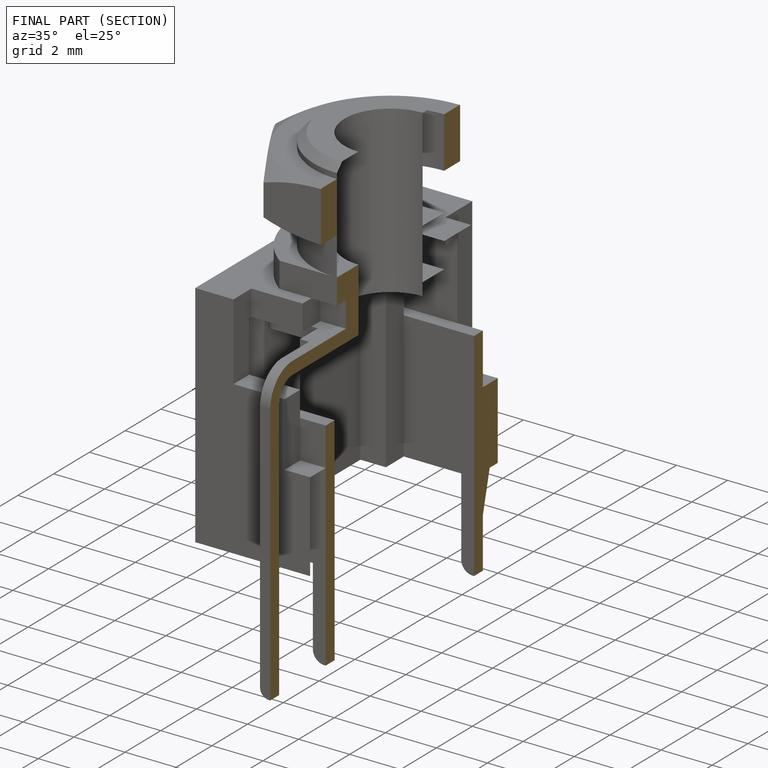
[diagram: finished part — half-section view (interior)]
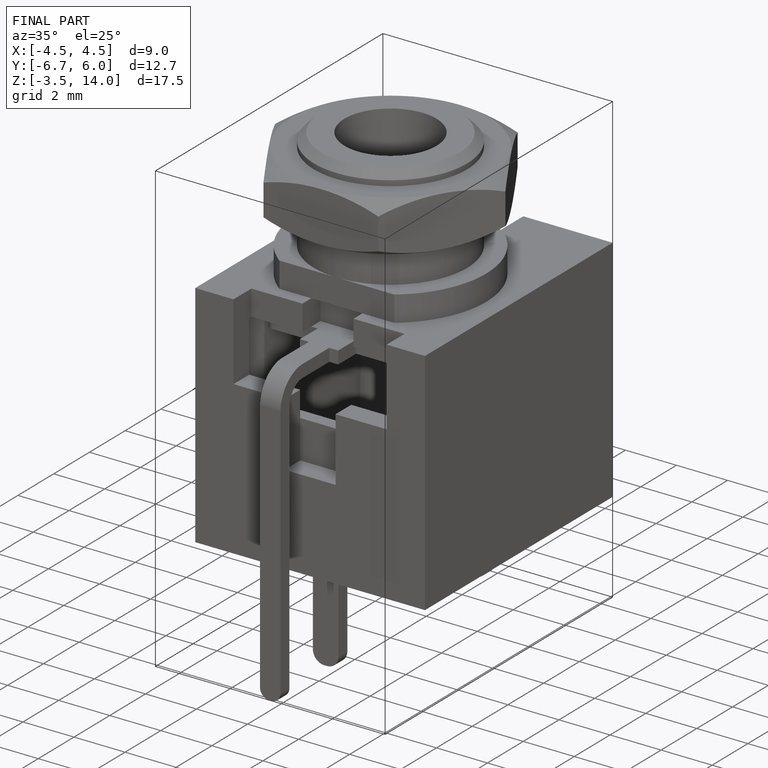
[diagram: finished part — iso view with bounding-box wireframe]
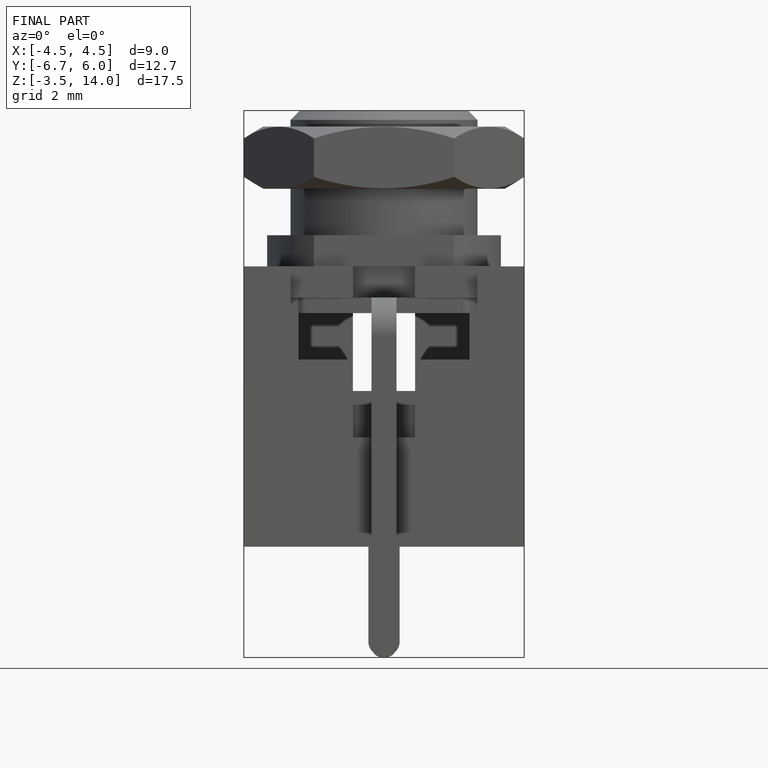
[diagram: finished part — front view with bounding-box wireframe]
